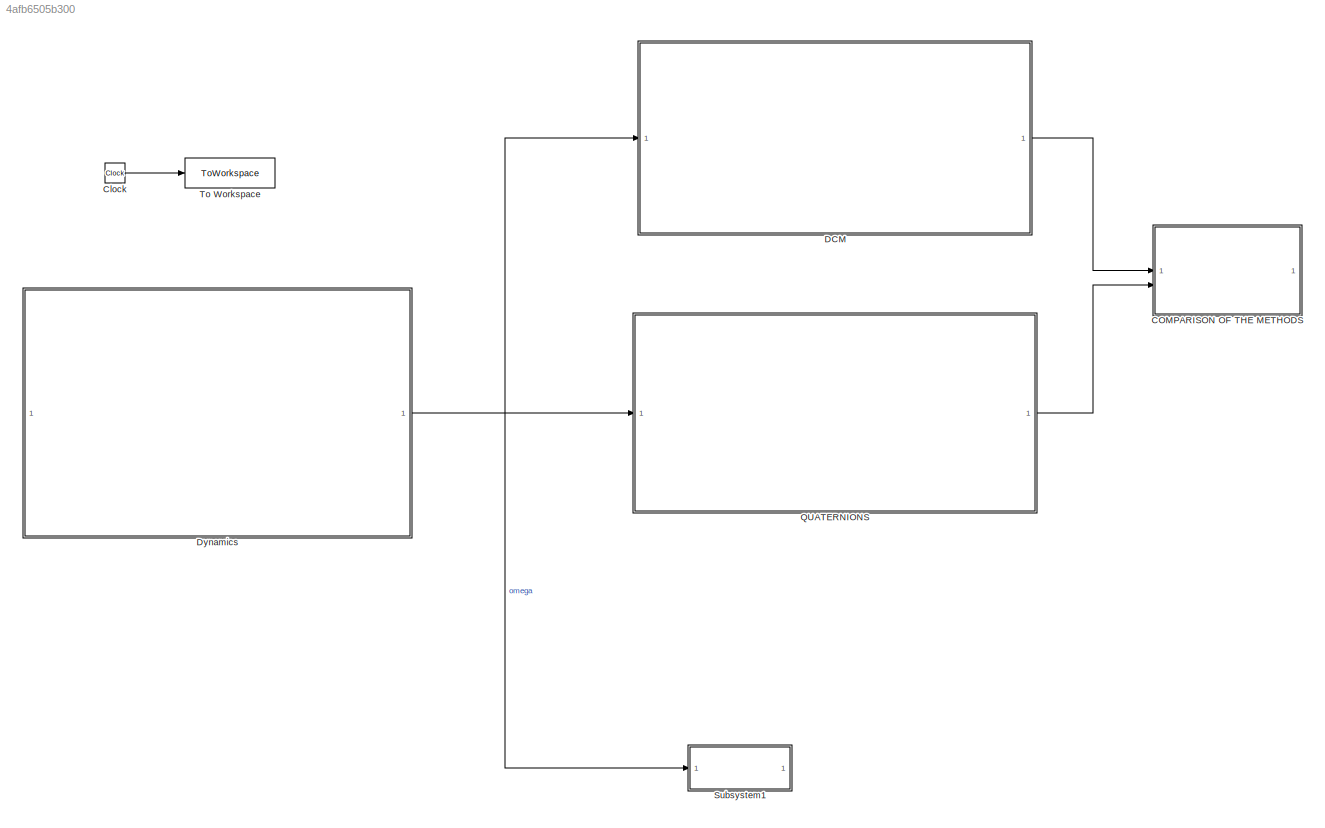
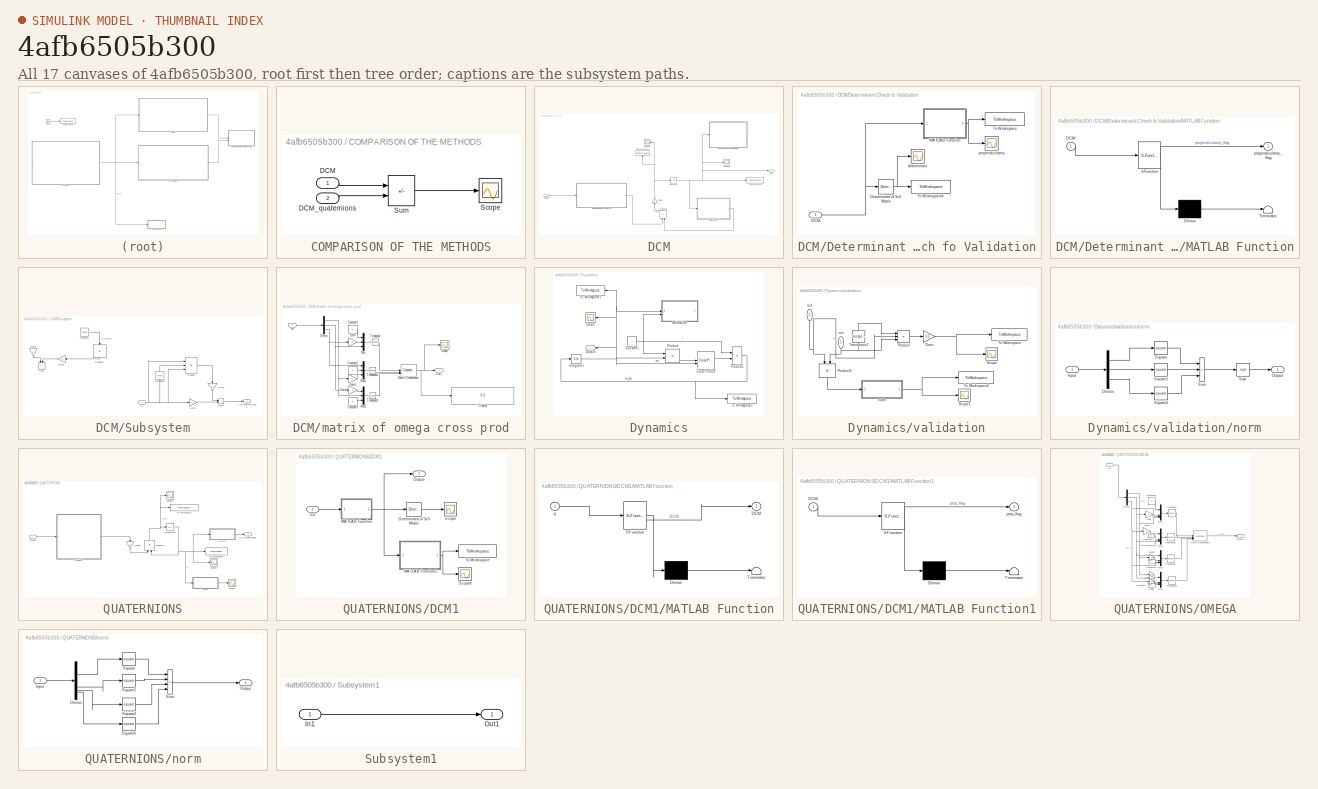
[diagram: thumbnail index - all 17 canvases of the model, root first then tree order]
MODEL slx_4afb6505b300
KIND model
CONFIG AbsTol = auto
CONFIG EnableMultiTasking = off
CONFIG FixedStep = 0.1
CONFIG MaxStep = auto
CONFIG MinStep = auto
CONFIG RelTol = 1e-3
CONFIG SampleTimeConstraint = Unconstrained
CONFIG SolverName = ode4
CONFIG StartTime = 0.0
CONFIG StopTime = 100
BLOCK [SubSystem] COMPARISON OF THE METHODS
BLOCK [Inport] COMPARISON OF THE METHODS/DCM
BLOCK [Inport] COMPARISON OF THE METHODS/DCM_quaternions
  Port = 2
BLOCK [Scope] COMPARISON OF THE METHODS/Scope
  Floating = off
  NumInputPorts = 1
  ScopeSpecificationString = Simulink.scopes.TimeScopeBlockCfg('CurrentConfiguration', extmgr.ConfigurationSet(extmgr.Configuration('Core','General UI',true),extmgr.Configuration('Core','Source UI',true),extmgr.Configuration('Sources','WiredSimulink',true,'DataLoggingVariableName','ScopeData7'),extmgr.Configuration('Visuals','Time Domain',true,'SerializedDisplays',{struct('MinYLimReal','-0.00003','MaxYLimReal','0.00003','YLab...<+1470ch>
BLOCK [Sum] COMPARISON OF THE METHODS/Sum
  IconShape = rectangular
  Inputs = +-
BLOCK [Clock] Clock
BLOCK [SubSystem] DCM
BLOCK [Outport] DCM/DCM
BLOCK [SubSystem] DCM/Determinant Chech fo Validation
BLOCK [Inport] DCM/Determinant Chech fo Validation/DCM
BLOCK [Reference] DCM/Determinant Chech fo Validation/Determinant of 3x3 Matrix  REF=sharedutil/Determinant of
3x3 Matrix
  LibrarySourceBlock = aerolibutil/Determinant of\n3x3 Matrix
  SourceBlock = sharedutil/Determinant of\n3x3 Matrix
  SourceType = Determinant of 3x3 Matrix
BLOCK [SubSystem] DCM/Determinant Chech fo Validation/MATLAB Function
  ErrorFcn = Stateflow.Translate.translate
  LibrarySourceBlock = simulink/User-Defined\nFunctions/MATLAB Function
  PermitHierarchicalResolution = ExplicitOnly
  SFBlockType = MATLAB Function
  TreatAsAtomicUnit = on
BLOCK [Demux] DCM/Determinant Chech fo Validation/MATLAB Function/ Demux 
  Outputs = 1
BLOCK [S-Function] DCM/Determinant Chech fo Validation/MATLAB Function/ SFunction 
  EnableBusSupport = on
  FunctionName = sf_sfun
  PortCounts = [1 2]
  SFcnIsStateOwnerBlock = off
  SFunctionDeploymentMode = off
  Tag = Stateflow S-Function 2
BLOCK [Terminator] DCM/Determinant Chech fo Validation/MATLAB Function/ Terminator 
BLOCK [Inport] DCM/Determinant Chech fo Validation/MATLAB Function/DCM
BLOCK [Outport] DCM/Determinant Chech fo Validation/MATLAB Function/perpendicularity_flag
BLOCK [ToWorkspace] DCM/Determinant Chech fo Validation/To Workspace
  FixptAsFi = on
  MaxDataPoints = inf
  SampleTime = -1
  VariableName = perpendicularity_flag
BLOCK [ToWorkspace] DCM/Determinant Chech fo Validation/To Workspace4
  FixptAsFi = on
  MaxDataPoints = inf
  SampleTime = -1
  VariableName = detA
BLOCK [Scope] DCM/Determinant Chech fo Validation/determinant
  Floating = off
  NumInputPorts = 1
  ScopeSpecificationString = Simulink.scopes.TimeScopeBlockCfg('CurrentConfiguration', extmgr.ConfigurationSet(extmgr.Configuration('Core','General UI',true),extmgr.Configuration('Core','Source UI',true),extmgr.Configuration('Sources','WiredSimulink',true,'DataLoggingVariableName','ScopeData1'),extmgr.Configuration('Visuals','Time Domain',true,'SerializedDisplays',{struct('MinYLimReal','0.9999958','MaxYLimReal','1.0000005','Y...<+1437ch>
BLOCK [Scope] DCM/Determinant Chech fo Validation/perpendicularity
  Floating = off
  NumInputPorts = 1
  ScopeSpecificationString = Simulink.scopes.TimeScopeBlockCfg('CurrentConfiguration', extmgr.ConfigurationSet(extmgr.Configuration('Core','General UI',true),extmgr.Configuration('Core','Source UI',true),extmgr.Configuration('Sources','WiredSimulink',true,'DataLoggingVariableName','ScopeData2'),extmgr.Configuration('Visuals','Time Domain',true,'SerializedDisplays',{struct('MinYLimReal','-0.0000017','MaxYLimReal','0.0000018','...<+1430ch>
BLOCK [Gain] DCM/Gain1
  Gain = -1
  NameLocation = right
BLOCK [Integrator] DCM/Integrator1
  InitialCondition = A0
BLOCK [Product] DCM/Product2
  Multiplication = Matrix(*)
  NameLocation = right
BLOCK [Scope] DCM/Scope1
  Floating = off
  NameLocation = top
  NumInputPorts = 1
  ScopeSpecificationString = Simulink.scopes.TimeScopeBlockCfg('CurrentConfiguration', extmgr.ConfigurationSet(extmgr.Configuration('Core','General UI',true),extmgr.Configuration('Core','Source UI',true),extmgr.Configuration('Sources','WiredSimulink',true,'DataLoggingVariableName','ScopeData3'),extmgr.Configuration('Visuals','Time Domain',true,'SerializedDisplays',{struct('MinYLimReal','-1.12078','MaxYLimReal','1.12831','YLab...<+1504ch>
BLOCK [Scope] DCM/Scope2
  Floating = off
  NumInputPorts = 1
  ScopeSpecificationString = Simulink.scopes.TimeScopeBlockCfg('CurrentConfiguration', extmgr.ConfigurationSet(extmgr.Configuration('Core','General UI',true),extmgr.Configuration('Core','Source UI',true),extmgr.Configuration('Sources','WiredSimulink',true,'DataLoggingVariableName','ScopeData4'),extmgr.Configuration('Visuals','Time Domain',true,'SerializedDisplays',{struct('MinYLimReal','-1.24998','MaxYLimReal','1.25','YLabelR...<+1527ch>
BLOCK [SubSystem] DCM/Subsystem
BLOCK [Inport] DCM/Subsystem/A1
BLOCK [Outport] DCM/Subsystem/A_orthonormalized1
BLOCK [Gain] DCM/Subsystem/Gain
  Gain = 1.5
BLOCK [Gain] DCM/Subsystem/Gain1
  Gain = -0.5
  NameLocation = left
BLOCK [Gain] DCM/Subsystem/Gain4
  Commented = on
  Gain = 3/2
  NameLocation = left
BLOCK [Gain] DCM/Subsystem/Gain5
  Commented = on
  Gain = 1/2
  NameLocation = top
BLOCK [Product] DCM/Subsystem/Product
  Inputs = 3
  Multiplication = Matrix(*)
BLOCK [Product] DCM/Subsystem/Product3
  Commented = on
  Inputs = 3
  Multiplication = Matrix(*)
  NameLocation = left
BLOCK [Sum] DCM/Subsystem/Sum
  Commented = on
  IconShape = rectangular
  Inputs = +-
  NameLocation = left
BLOCK [Sum] DCM/Subsystem/Sum1
  IconShape = rectangular
BLOCK [Math] DCM/Subsystem/Transpose
  Commented = on
  Operator = transpose
BLOCK [Math] DCM/Subsystem/Transpose1
  NameLocation = right
  Operator = transpose
BLOCK [ToWorkspace] DCM/To Workspace2
  FixptAsFi = on
  MaxDataPoints = inf
  SampleTime = -1
  VariableName = A
BLOCK [ToWorkspace] DCM/To Workspace3
  FixptAsFi = on
  MaxDataPoints = inf
  NameLocation = right
  SampleTime = -1
  VariableName = A_dot
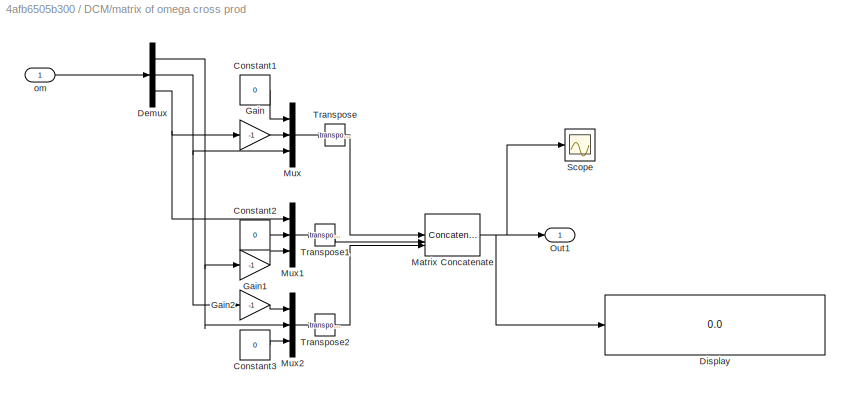
BLOCK [SubSystem] DCM/matrix of omega cross prod
BLOCK [Constant] DCM/matrix of omega cross prod/Constant1
  Value = 0
BLOCK [Constant] DCM/matrix of omega cross prod/Constant2
  Value = 0
BLOCK [Constant] DCM/matrix of omega cross prod/Constant3
  Value = 0
BLOCK [Demux] DCM/matrix of omega cross prod/Demux
  Outputs = 3
BLOCK [Display] DCM/matrix of omega cross prod/Display
  Decimation = 1
BLOCK [Gain] DCM/matrix of omega cross prod/Gain
  Gain = -1
BLOCK [Gain] DCM/matrix of omega cross prod/Gain1
  Gain = -1
BLOCK [Gain] DCM/matrix of omega cross prod/Gain2
  Gain = -1
BLOCK [Concatenate] DCM/matrix of omega cross prod/Matrix Concatenate
  Mode = Multidimensional array
  NumInputs = 3
BLOCK [Mux] DCM/matrix of omega cross prod/Mux
  DisplayOption = bar
  Inputs = 3
BLOCK [Mux] DCM/matrix of omega cross prod/Mux1
  DisplayOption = bar
  Inputs = 3
BLOCK [Mux] DCM/matrix of omega cross prod/Mux2
  DisplayOption = bar
  Inputs = 3
BLOCK [Outport] DCM/matrix of omega cross prod/Out1
BLOCK [Scope] DCM/matrix of omega cross prod/Scope
  Floating = off
  NumInputPorts = 1
  ScopeSpecificationString = Simulink.scopes.TimeScopeBlockCfg('CurrentConfiguration', extmgr.ConfigurationSet(extmgr.Configuration('Core','General UI',true),extmgr.Configuration('Core','Source UI',true),extmgr.Configuration('Sources','WiredSimulink',true,'DataLoggingVariableName','ScopeData2'),extmgr.Configuration('Visuals','Time Domain',true,'SerializedDisplays',{struct('MinYLimReal','-1.01319','MaxYLimReal','1.01319','YLab...<+1486ch>
BLOCK [Math] DCM/matrix of omega cross prod/Transpose
  Operator = transpose
BLOCK [Math] DCM/matrix of omega cross prod/Transpose1
  Operator = transpose
BLOCK [Math] DCM/matrix of omega cross prod/Transpose2
  Operator = transpose
BLOCK [Inport] DCM/matrix of omega cross prod/om
BLOCK [Inport] DCM/omega
BLOCK [SubSystem] Dynamics
BLOCK [Constant] Dynamics/Constant
  Value = I
BLOCK [Reference] Dynamics/Cross Product  REF=matrix_library/Cross Product
  LibrarySourceBlock = simulink/Matrix\nOperations/Cross Product
  SourceBlock = matrix_library/Cross Product
  SourceType = CrossProduct
BLOCK [Integrator] Dynamics/Integrator
  InitialCondition = om_0
BLOCK [Outport] Dynamics/Output
  NameLocation = top
BLOCK [Product] Dynamics/Product
  Multiplication = Matrix(*)
BLOCK [Product] Dynamics/Product1
  Inputs = /*
  Multiplication = Matrix(*)
BLOCK [Scope] Dynamics/Scope
  Floating = off
  NameLocation = top
  NumInputPorts = 1
  ScopeSpecificationString = Simulink.scopes.TimeScopeBlockCfg('CurrentConfiguration', extmgr.ConfigurationSet(extmgr.Configuration('Core','General UI',true),extmgr.Configuration('Core','Source UI',true),extmgr.Configuration('Sources','WiredSimulink',true,'DataLoggingVariableName','ScopeData1'),extmgr.Configuration('Visuals','Time Domain',true,'SerializedDisplays',{struct('MinYLimReal','-1.01319','MaxYLimReal','1.01319','YLab...<+1377ch>
BLOCK [ToWorkspace] Dynamics/To Workspace1
  FixptAsFi = on
  MaxDataPoints = inf
  NameLocation = top
  SampleTime = -1
  VariableName = omega
BLOCK [ToWorkspace] Dynamics/To Workspace2
  FixptAsFi = on
  MaxDataPoints = inf
  SampleTime = -1
  VariableName = omega_dot
BLOCK [SubSystem] Dynamics/validation
BLOCK [Gain] Dynamics/validation/Gain
  Gain = 1/2
BLOCK [Inport] Dynamics/validation/In2
  NameLocation = left
  Port = 2
BLOCK [Product] Dynamics/validation/Product
  Inputs = 3
  Multiplication = Matrix(*)
BLOCK [Product] Dynamics/validation/Product2
  Multiplication = Matrix(*)
  NameLocation = left
BLOCK [Scope] Dynamics/validation/Scope
  Floating = off
  NumInputPorts = 1
  ScopeSpecificationString = Simulink.scopes.TimeScopeBlockCfg('CurrentConfiguration', extmgr.ConfigurationSet(extmgr.Configuration('Core','General UI',true),extmgr.Configuration('Core','Source UI',true),extmgr.Configuration('Sources','WiredSimulink',true,'DataLoggingVariableName','ScopeData2'),extmgr.Configuration('Visuals','Time Domain',true,'SerializedDisplays',{struct('MinYLimReal','0.01830474937','MaxYLimReal','0.0183047...<+1409ch>
BLOCK [Scope] Dynamics/validation/Scope1
  Floating = off
  NumInputPorts = 1
  ScopeSpecificationString = Simulink.scopes.TimeScopeBlockCfg('CurrentConfiguration', extmgr.ConfigurationSet(extmgr.Configuration('Core','General UI',true),extmgr.Configuration('Core','Source UI',true),extmgr.Configuration('Sources','WiredSimulink',true,'DataLoggingVariableName','ScopeData1'),extmgr.Configuration('Visuals','Time Domain',true,'SerializedDisplays',{struct('MinYLimReal','0.0447132243','MaxYLimReal','0.04471322...<+1406ch>
BLOCK [ToWorkspace] Dynamics/validation/To Workspace
  FixptAsFi = on
  MaxDataPoints = inf
  SampleTime = -1
  VariableName = E
BLOCK [ToWorkspace] Dynamics/validation/To Workspace2
  FixptAsFi = on
  MaxDataPoints = inf
  SampleTime = -1
  VariableName = hnorm
BLOCK [Math] Dynamics/validation/Transpose1
  NameLocation = right
  Operator = transpose
BLOCK [SubSystem] Dynamics/validation/norm
BLOCK [Demux] Dynamics/validation/norm/Demux
  Outputs = 3
BLOCK [Inport] Dynamics/validation/norm/Input
BLOCK [Outport] Dynamics/validation/norm/Output
BLOCK [Sqrt] Dynamics/validation/norm/Sqrt
BLOCK [Math] Dynamics/validation/norm/Square
  Operator = square
BLOCK [Math] Dynamics/validation/norm/Square1
  Operator = square
BLOCK [Math] Dynamics/validation/norm/Square2
  Operator = square
BLOCK [Sum] Dynamics/validation/norm/Sum
  IconShape = rectangular
  Inputs = +++
BLOCK [Inport] Dynamics/validation/om
  NameLocation = left
BLOCK [SubSystem] QUATERNIONS
BLOCK [SubSystem] QUATERNIONS/DCM1
BLOCK [Reference] QUATERNIONS/DCM1/Determinant of 3x3 Matrix  REF=sharedutil/Determinant of
3x3 Matrix
  LibrarySourceBlock = aerolibutil/Determinant of\n3x3 Matrix
  SourceBlock = sharedutil/Determinant of\n3x3 Matrix
  SourceType = Determinant of 3x3 Matrix
BLOCK [Inport] QUATERNIONS/DCM1/In1
BLOCK [SubSystem] QUATERNIONS/DCM1/MATLAB Function
  ErrorFcn = Stateflow.Translate.translate
  LibrarySourceBlock = simulink/User-Defined\nFunctions/MATLAB Function
  PermitHierarchicalResolution = ExplicitOnly
  SFBlockType = MATLAB Function
  TreatAsAtomicUnit = on
BLOCK [Demux] QUATERNIONS/DCM1/MATLAB Function/ Demux 
  Outputs = 1
BLOCK [S-Function] QUATERNIONS/DCM1/MATLAB Function/ SFunction 
  EnableBusSupport = on
  FunctionName = sf_sfun
  PortCounts = [1 2]
  SFcnIsStateOwnerBlock = off
  SFunctionDeploymentMode = off
  Tag = Stateflow S-Function 1
BLOCK [Terminator] QUATERNIONS/DCM1/MATLAB Function/ Terminator 
BLOCK [Outport] QUATERNIONS/DCM1/MATLAB Function/DCM
BLOCK [Inport] QUATERNIONS/DCM1/MATLAB Function/q
BLOCK [SubSystem] QUATERNIONS/DCM1/MATLAB Function1
  ErrorFcn = Stateflow.Translate.translate
  LibrarySourceBlock = simulink/User-Defined\nFunctions/MATLAB Function
  PermitHierarchicalResolution = ExplicitOnly
  SFBlockType = MATLAB Function
  TreatAsAtomicUnit = on
BLOCK [Demux] QUATERNIONS/DCM1/MATLAB Function1/ Demux 
  Outputs = 1
BLOCK [S-Function] QUATERNIONS/DCM1/MATLAB Function1/ SFunction 
  EnableBusSupport = on
  FunctionName = sf_sfun
  PortCounts = [1 2]
  SFcnIsStateOwnerBlock = off
  SFunctionDeploymentMode = off
  Tag = Stateflow S-Function 3
BLOCK [Terminator] QUATERNIONS/DCM1/MATLAB Function1/ Terminator 
BLOCK [Inport] QUATERNIONS/DCM1/MATLAB Function1/DCM
BLOCK [Outport] QUATERNIONS/DCM1/MATLAB Function1/perp_flag
BLOCK [Outport] QUATERNIONS/DCM1/Output
BLOCK [Scope] QUATERNIONS/DCM1/Scope
  Floating = off
  NumInputPorts = 1
  ScopeSpecificationString = Simulink.scopes.TimeScopeBlockCfg('CurrentConfiguration', extmgr.ConfigurationSet(extmgr.Configuration('Core','General UI',true),extmgr.Configuration('Core','Source UI',true),extmgr.Configuration('Sources','WiredSimulink',true,'DataLoggingVariableName','ScopeData1'),extmgr.Configuration('Visuals','Time Domain',true,'SerializedDisplays',{struct('MinYLimReal','0.99999957','MaxYLimReal','1.00000013',...<+1406ch>
BLOCK [Scope] QUATERNIONS/DCM1/Scope4
  Floating = off
  NumInputPorts = 1
  ScopeSpecificationString = Simulink.scopes.TimeScopeBlockCfg('CurrentConfiguration', extmgr.ConfigurationSet(extmgr.Configuration('Core','General UI',true),extmgr.Configuration('Core','Source UI',true),extmgr.Configuration('Sources','WiredSimulink',true,'DataLoggingVariableName','ScopeData8'),extmgr.Configuration('Visuals','Time Domain',true,'SerializedDisplays',{struct('MinYLimReal','-0.00000000000000031','MaxYLimReal','0....<+1568ch>
BLOCK [ToWorkspace] QUATERNIONS/DCM1/To Workspace
  FixptAsFi = on
  MaxDataPoints = inf
  SampleTime = -1
  VariableName = perp_flag1
BLOCK [Outport] QUATERNIONS/DCM_quaternions
BLOCK [Gain] QUATERNIONS/Gain3
  Gain = 1/2
  NameLocation = left
BLOCK [Integrator] QUATERNIONS/Integrator1
  InitialCondition = q0
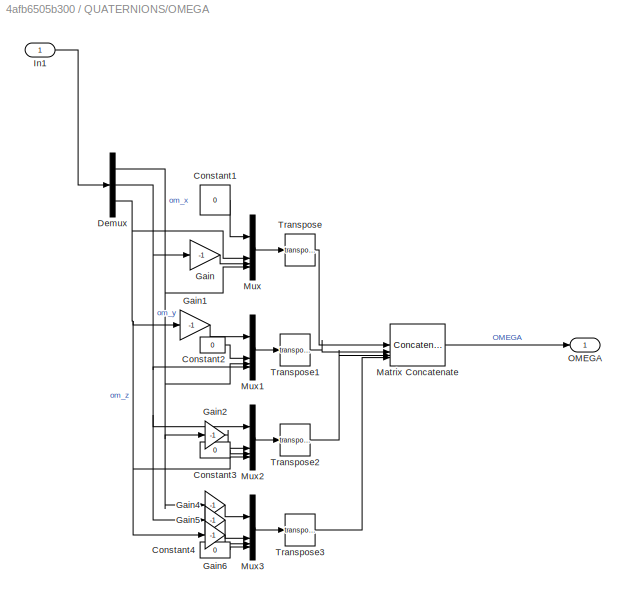
BLOCK [SubSystem] QUATERNIONS/OMEGA
BLOCK [Constant] QUATERNIONS/OMEGA/Constant1
  Value = 0
BLOCK [Constant] QUATERNIONS/OMEGA/Constant2
  Value = 0
BLOCK [Constant] QUATERNIONS/OMEGA/Constant3
  Value = 0
BLOCK [Constant] QUATERNIONS/OMEGA/Constant4
  Value = 0
BLOCK [Demux] QUATERNIONS/OMEGA/Demux
  Outputs = 3
BLOCK [Gain] QUATERNIONS/OMEGA/Gain
  Gain = -1
BLOCK [Gain] QUATERNIONS/OMEGA/Gain1
  Gain = -1
BLOCK [Gain] QUATERNIONS/OMEGA/Gain2
  Gain = -1
BLOCK [Gain] QUATERNIONS/OMEGA/Gain4
  Gain = -1
BLOCK [Gain] QUATERNIONS/OMEGA/Gain5
  Gain = -1
BLOCK [Gain] QUATERNIONS/OMEGA/Gain6
  Gain = -1
BLOCK [Inport] QUATERNIONS/OMEGA/In1
BLOCK [Concatenate] QUATERNIONS/OMEGA/Matrix Concatenate
  Mode = Multidimensional array
  NumInputs = 4
BLOCK [Mux] QUATERNIONS/OMEGA/Mux
  DisplayOption = bar
BLOCK [Mux] QUATERNIONS/OMEGA/Mux1
  DisplayOption = bar
BLOCK [Mux] QUATERNIONS/OMEGA/Mux2
  DisplayOption = bar
BLOCK [Mux] QUATERNIONS/OMEGA/Mux3
  DisplayOption = bar
BLOCK [Outport] QUATERNIONS/OMEGA/OMEGA
BLOCK [Math] QUATERNIONS/OMEGA/Transpose
  Operator = transpose
BLOCK [Math] QUATERNIONS/OMEGA/Transpose1
  Operator = transpose
BLOCK [Math] QUATERNIONS/OMEGA/Transpose2
  Operator = transpose
BLOCK [Math] QUATERNIONS/OMEGA/Transpose3
  Operator = transpose
BLOCK [Product] QUATERNIONS/Product2
  Multiplication = Matrix(*)
  NameLocation = right
BLOCK [Scope] QUATERNIONS/Scope
  Floating = off
  NumInputPorts = 1
  ScopeSpecificationString = Simulink.scopes.TimeScopeBlockCfg('CurrentConfiguration', extmgr.ConfigurationSet(extmgr.Configuration('Core','General UI',true),extmgr.Configuration('Core','Source UI',true),extmgr.Configuration('Sources','WiredSimulink',true,'DataLoggingVariableName','ScopeData1'),extmgr.Configuration('Visuals','Time Domain',true,'SerializedDisplays',{struct('MinYLimReal','0.99999986','MaxYLimReal','1.00000004',...<+1385ch>
BLOCK [Scope] QUATERNIONS/Scope1
  Floating = off
  NumInputPorts = 1
  ScopeSpecificationString = Simulink.scopes.TimeScopeBlockCfg('CurrentConfiguration', extmgr.ConfigurationSet(extmgr.Configuration('Core','General UI',true),extmgr.Configuration('Core','Source UI',true),extmgr.Configuration('Sources','WiredSimulink',true,'DataLoggingVariableName','ScopeData5'),extmgr.Configuration('Visuals','Time Domain',true,'SerializedDisplays',{struct('MinYLimReal','-1.24956','MaxYLimReal','1.24995','YLab...<+1420ch>
BLOCK [Scope] QUATERNIONS/Scope2
  Floating = off
  NumInputPorts = 1
  ScopeSpecificationString = Simulink.scopes.TimeScopeBlockCfg('CurrentConfiguration', extmgr.ConfigurationSet(extmgr.Configuration('Core','General UI',true),extmgr.Configuration('Core','Source UI',true),extmgr.Configuration('Sources','WiredSimulink',true,'DataLoggingVariableName','ScopeData6'),extmgr.Configuration('Visuals','Time Domain',true,'SerializedDisplays',{struct('MinYLimReal','-0.50726','MaxYLimReal','0.50895','YLab...<+1396ch>
BLOCK [ToWorkspace] QUATERNIONS/To Workspace2
  FixptAsFi = on
  MaxDataPoints = inf
  SampleTime = -1
  SaveFormat = Timeseries
  VariableName = q
BLOCK [ToWorkspace] QUATERNIONS/To Workspace3
  FixptAsFi = on
  MaxDataPoints = inf
  SampleTime = -1
  SaveFormat = Timeseries
  VariableName = q_dot
BLOCK [SubSystem] QUATERNIONS/norm
BLOCK [Demux] QUATERNIONS/norm/Demux
BLOCK [Inport] QUATERNIONS/norm/Input
BLOCK [Outport] QUATERNIONS/norm/Output
BLOCK [Math] QUATERNIONS/norm/Square
  Operator = square
BLOCK [Math] QUATERNIONS/norm/Square1
  Operator = square
BLOCK [Math] QUATERNIONS/norm/Square2
  Operator = square
BLOCK [Math] QUATERNIONS/norm/Square4
  Operator = square
BLOCK [Sum] QUATERNIONS/norm/Sum
  IconShape = rectangular
  Inputs = ++++
BLOCK [Inport] QUATERNIONS/omega
BLOCK [SubSystem] Subsystem1
  Commented = on
BLOCK [Inport] Subsystem1/In1
BLOCK [Outport] Subsystem1/Out1
BLOCK [ToWorkspace] To Workspace
  FixptAsFi = on
  MaxDataPoints = inf
  SampleTime = -1
  SaveFormat = Timeseries
  VariableName = time
ANNOTATION DCM: A
LINE COMPARISON OF THE METHODS/DCM:1 -> COMPARISON OF THE METHODS/Sum:1
LINE COMPARISON OF THE METHODS/DCM_quaternions:1 -> COMPARISON OF THE METHODS/Sum:2
LINE COMPARISON OF THE METHODS/Sum:1 -> COMPARISON OF THE METHODS/Scope:1
LINE Clock:1 -> To Workspace:1
NET DCM/Determinant Chech fo Validation/DCM:1 -> DCM/Determinant Chech fo Validation/Determinant of 3x3 Matrix:1, DCM/Determinant Chech fo Validation/MATLAB Function:1
NET DCM/Determinant Chech fo Validation/Determinant of 3x3 Matrix:1 -> DCM/Determinant Chech fo Validation/To Workspace4:1, DCM/Determinant Chech fo Validation/determinant:1
NET DCM/Determinant Chech fo Validation/MATLAB Function:1 -> DCM/Determinant Chech fo Validation/To Workspace:1, DCM/Determinant Chech fo Validation/perpendicularity:1
NET DCM/Gain1:1 -> DCM/Integrator1:1, DCM/Scope1:1, DCM/To Workspace3:1
NET DCM/Integrator1:1 -> DCM/DCM:1, DCM/Determinant Chech fo Validation:1, DCM/Scope2:1, DCM/Subsystem:1, DCM/To Workspace2:1
LINE DCM/Product2:1 -> DCM/Gain1:1
NET DCM/Subsystem/A1:1 -> DCM/Subsystem/Gain:1, DCM/Subsystem/Product:1, DCM/Subsystem/Product:3, DCM/Subsystem/Transpose1:1
LINE DCM/Subsystem/Gain1:1 -> DCM/Subsystem/Sum1:1
LINE DCM/Subsystem/Gain4:1 -> DCM/Subsystem/Sum:1
LINE DCM/Subsystem/Gain5:1 -> DCM/Subsystem/Sum:2
LINE DCM/Subsystem/Gain:1 -> DCM/Subsystem/Sum1:2
LINE DCM/Subsystem/Product3:1 -> DCM/Subsystem/Gain5:1
LINE DCM/Subsystem/Product:1 -> DCM/Subsystem/Gain1:1
LINE DCM/Subsystem/Sum1:1 -> DCM/Subsystem/A_orthonormalized1:1
LINE DCM/Subsystem/Transpose1:1 -> DCM/Subsystem/Product:2
LINE DCM/Subsystem/Transpose:1 -> DCM/Subsystem/Product3:2
LINE DCM/Subsystem:1 -> DCM/Product2:2
LINE DCM/matrix of omega cross prod/Constant1:1 -> DCM/matrix of omega cross prod/Mux:1
LINE DCM/matrix of omega cross prod/Constant2:1 -> DCM/matrix of omega cross prod/Mux1:2
LINE DCM/matrix of omega cross prod/Constant3:1 -> DCM/matrix of omega cross prod/Mux2:3
NET DCM/matrix of omega cross prod/Demux:1 -> DCM/matrix of omega cross prod/Gain1:1, DCM/matrix of omega cross prod/Mux2:2
NET DCM/matrix of omega cross prod/Demux:2 -> DCM/matrix of omega cross prod/Gain2:1, DCM/matrix of omega cross prod/Mux:3
NET DCM/matrix of omega cross prod/Demux:3 -> DCM/matrix of omega cross prod/Gain:1, DCM/matrix of omega cross prod/Mux1:1
LINE DCM/matrix of omega cross prod/Gain1:1 -> DCM/matrix of omega cross prod/Mux1:3
LINE DCM/matrix of omega cross prod/Gain2:1 -> DCM/matrix of omega cross prod/Mux2:1
LINE DCM/matrix of omega cross prod/Gain:1 -> DCM/matrix of omega cross prod/Mux:2
NET DCM/matrix of omega cross prod/Matrix Concatenate:1 -> DCM/matrix of omega cross prod/Display:1, DCM/matrix of omega cross prod/Out1:1, DCM/matrix of omega cross prod/Scope:1
LINE DCM/matrix of omega cross prod/Mux1:1 -> DCM/matrix of omega cross prod/Transpose1:1
LINE DCM/matrix of omega cross prod/Mux2:1 -> DCM/matrix of omega cross prod/Transpose2:1
LINE DCM/matrix of omega cross prod/Mux:1 -> DCM/matrix of omega cross prod/Transpose:1
LINE DCM/matrix of omega cross prod/Transpose1:1 -> DCM/matrix of omega cross prod/Matrix Concatenate:2
LINE DCM/matrix of omega cross prod/Transpose2:1 -> DCM/matrix of omega cross prod/Matrix Concatenate:3
LINE DCM/matrix of omega cross prod/Transpose:1 -> DCM/matrix of omega cross prod/Matrix Concatenate:1
LINE DCM/matrix of omega cross prod/om:1 -> DCM/matrix of omega cross prod/Demux:1
LINE DCM/matrix of omega cross prod:1 -> DCM/Product2:1
LINE DCM/omega:1 -> DCM/matrix of omega cross prod:1
LINE DCM:1 -> COMPARISON OF THE METHODS:1
NET Dynamics/Constant:1 -> Dynamics/Product1:1, Dynamics/Product:1, Dynamics/validation:2
LINE Dynamics/Cross Product:1 -> Dynamics/Product1:2
NET Dynamics/Integrator:1 -> Dynamics/Cross Product:2, Dynamics/Output:1, Dynamics/Product:2, Dynamics/Scope:1, Dynamics/To Workspace1:1, Dynamics/validation:1
NET Dynamics/Product1:1 -> Dynamics/Integrator:1, Dynamics/To Workspace2:1
LINE Dynamics/Product:1 -> Dynamics/Cross Product:1
NET Dynamics/validation/Gain:1 -> Dynamics/validation/Scope:1, Dynamics/validation/To Workspace:1
NET Dynamics/validation/In2:1 -> Dynamics/validation/Product2:1, Dynamics/validation/Product:2
LINE Dynamics/validation/Product2:1 -> Dynamics/validation/norm:1
LINE Dynamics/validation/Product:1 -> Dynamics/validation/Gain:1
LINE Dynamics/validation/Transpose1:1 -> Dynamics/validation/Product:1
LINE Dynamics/validation/norm/Demux:1 -> Dynamics/validation/norm/Square:1
LINE Dynamics/validation/norm/Demux:2 -> Dynamics/validation/norm/Square1:1
LINE Dynamics/validation/norm/Demux:3 -> Dynamics/validation/norm/Square2:1
LINE Dynamics/validation/norm/Input:1 -> Dynamics/validation/norm/Demux:1
LINE Dynamics/validation/norm/Sqrt:1 -> Dynamics/validation/norm/Output:1
LINE Dynamics/validation/norm/Square1:1 -> Dynamics/validation/norm/Sum:2
LINE Dynamics/validation/norm/Square2:1 -> Dynamics/validation/norm/Sum:3
LINE Dynamics/validation/norm/Square:1 -> Dynamics/validation/norm/Sum:1
LINE Dynamics/validation/norm/Sum:1 -> Dynamics/validation/norm/Sqrt:1
NET Dynamics/validation/norm:1 -> Dynamics/validation/Scope1:1, Dynamics/validation/To Workspace2:1
NET Dynamics/validation/om:1 -> Dynamics/validation/Product2:2, Dynamics/validation/Product:3, Dynamics/validation/Transpose1:1
NET Dynamics:1 -> DCM:1, QUATERNIONS:1, Subsystem1:1
LINE QUATERNIONS/DCM1/Determinant of 3x3 Matrix:1 -> QUATERNIONS/DCM1/Scope:1
LINE QUATERNIONS/DCM1/In1:1 -> QUATERNIONS/DCM1/MATLAB Function:1
NET QUATERNIONS/DCM1/MATLAB Function1:1 -> QUATERNIONS/DCM1/Scope4:1, QUATERNIONS/DCM1/To Workspace:1
NET QUATERNIONS/DCM1/MATLAB Function:1 -> QUATERNIONS/DCM1/Determinant of 3x3 Matrix:1, QUATERNIONS/DCM1/MATLAB Function1:1, QUATERNIONS/DCM1/Output:1
LINE QUATERNIONS/DCM1:1 -> QUATERNIONS/DCM_quaternions:1
LINE QUATERNIONS/Gain3:1 -> QUATERNIONS/Product2:1
NET QUATERNIONS/Integrator1:1 -> QUATERNIONS/DCM1:1, QUATERNIONS/Product2:2, QUATERNIONS/Scope1:1, QUATERNIONS/To Workspace2:1, QUATERNIONS/norm:1
LINE QUATERNIONS/OMEGA/Constant1:1 -> QUATERNIONS/OMEGA/Mux:1
LINE QUATERNIONS/OMEGA/Constant2:1 -> QUATERNIONS/OMEGA/Mux1:2
LINE QUATERNIONS/OMEGA/Constant3:1 -> QUATERNIONS/OMEGA/Mux2:3
LINE QUATERNIONS/OMEGA/Constant4:1 -> QUATERNIONS/OMEGA/Mux3:4
NET QUATERNIONS/OMEGA/Demux:1 -> QUATERNIONS/OMEGA/Gain2:1, QUATERNIONS/OMEGA/Gain4:1, QUATERNIONS/OMEGA/Mux1:3, QUATERNIONS/OMEGA/Mux:4
NET QUATERNIONS/OMEGA/Demux:2 -> QUATERNIONS/OMEGA/Gain5:1, QUATERNIONS/OMEGA/Gain:1, QUATERNIONS/OMEGA/Mux1:4, QUATERNIONS/OMEGA/Mux2:1
NET QUATERNIONS/OMEGA/Demux:3 -> QUATERNIONS/OMEGA/Gain1:1, QUATERNIONS/OMEGA/Gain6:1, QUATERNIONS/OMEGA/Mux2:4, QUATERNIONS/OMEGA/Mux:2
LINE QUATERNIONS/OMEGA/Gain1:1 -> QUATERNIONS/OMEGA/Mux1:1
LINE QUATERNIONS/OMEGA/Gain2:1 -> QUATERNIONS/OMEGA/Mux2:2
LINE QUATERNIONS/OMEGA/Gain4:1 -> QUATERNIONS/OMEGA/Mux3:1
LINE QUATERNIONS/OMEGA/Gain5:1 -> QUATERNIONS/OMEGA/Mux3:2
LINE QUATERNIONS/OMEGA/Gain6:1 -> QUATERNIONS/OMEGA/Mux3:3
LINE QUATERNIONS/OMEGA/Gain:1 -> QUATERNIONS/OMEGA/Mux:3
LINE QUATERNIONS/OMEGA/In1:1 -> QUATERNIONS/OMEGA/Demux:1
LINE QUATERNIONS/OMEGA/Matrix Concatenate:1 -> QUATERNIONS/OMEGA/OMEGA:1
LINE QUATERNIONS/OMEGA/Mux1:1 -> QUATERNIONS/OMEGA/Transpose1:1
LINE QUATERNIONS/OMEGA/Mux2:1 -> QUATERNIONS/OMEGA/Transpose2:1
LINE QUATERNIONS/OMEGA/Mux3:1 -> QUATERNIONS/OMEGA/Transpose3:1
LINE QUATERNIONS/OMEGA/Mux:1 -> QUATERNIONS/OMEGA/Transpose:1
LINE QUATERNIONS/OMEGA/Transpose1:1 -> QUATERNIONS/OMEGA/Matrix Concatenate:2
LINE QUATERNIONS/OMEGA/Transpose2:1 -> QUATERNIONS/OMEGA/Matrix Concatenate:3
LINE QUATERNIONS/OMEGA/Transpose3:1 -> QUATERNIONS/OMEGA/Matrix Concatenate:4
LINE QUATERNIONS/OMEGA/Transpose:1 -> QUATERNIONS/OMEGA/Matrix Concatenate:1
LINE QUATERNIONS/OMEGA:1 -> QUATERNIONS/Gain3:1
NET QUATERNIONS/Product2:1 -> QUATERNIONS/Integrator1:1, QUATERNIONS/Scope2:1, QUATERNIONS/To Workspace3:1
LINE QUATERNIONS/norm/Demux:1 -> QUATERNIONS/norm/Square:1
LINE QUATERNIONS/norm/Demux:2 -> QUATERNIONS/norm/Square1:1
LINE QUATERNIONS/norm/Demux:3 -> QUATERNIONS/norm/Square2:1
LINE QUATERNIONS/norm/Demux:4 -> QUATERNIONS/norm/Square4:1
LINE QUATERNIONS/norm/Input:1 -> QUATERNIONS/norm/Demux:1
LINE QUATERNIONS/norm/Square1:1 -> QUATERNIONS/norm/Sum:2
LINE QUATERNIONS/norm/Square2:1 -> QUATERNIONS/norm/Sum:3
LINE QUATERNIONS/norm/Square4:1 -> QUATERNIONS/norm/Sum:4
LINE QUATERNIONS/norm/Square:1 -> QUATERNIONS/norm/Sum:1
LINE QUATERNIONS/norm/Sum:1 -> QUATERNIONS/norm/Output:1
LINE QUATERNIONS/norm:1 -> QUATERNIONS/Scope:1
LINE QUATERNIONS/omega:1 -> QUATERNIONS/OMEGA:1
LINE QUATERNIONS:1 -> COMPARISON OF THE METHODS:2
LINE Subsystem1/In1:1 -> Subsystem1/Out1:1
note: NET lines group one-source signal fan-out (src -> all destinations, sorted); 1:1 wires keep LINE
CHART DCM/Determinant Chech fo Validation/MATLAB Function states=1 transitions=1
  STATE_LABEL 'eML_blk_kernel()'
  STATE_LABEL 'SCRIPT:\nfunction perpendicularity_flag = fcn(DCM)\n\n\nperpendicularity_flag =zeros(3,1);\n\n    x   = DCM(1,:);\n    y   = DCM(2,:);\n    z   = DCM(3,:);\n\n    perpendicularity_flag(1)=dot(x,y);\n    perpendicularity_flag(2)=dot(x,z);\n    perpendicularity_flag(3)=dot(z,y);\n\nend\n\n'
CHART QUATERNIONS/DCM1/MATLAB Function1 states=1 transitions=1
  STATE_LABEL 'eML_blk_kernel()'
  STATE_LABEL 'SCRIPT:\nfunction perp_flag = fcn(DCM)\n\n\nperp_flag =zeros(3,1);\n\n    x   = DCM(1,:);\n    y   = DCM(2,:);\n    z   = DCM(3,:);\n\n    perp_flag(1)=dot(x,y);\n    perp_flag(2)=dot(x,z);\n    perp_flag(3)=dot(z,y);\n\nend\n\n'
CHART QUATERNIONS/DCM1/MATLAB Function states=1 transitions=1
  STATE_LABEL 'eML_blk_kernel()'
  STATE_LABEL 'SCRIPT:\nfunction DCM = fcn(q)\n\nq1 = q(1);\nq2 = q(2);\nq3 = q(3);\nq4 = q(4);\n\nDCM = [q1^2-q2^2-q3^2+q4^2, 2*(q1*q2+q3*q4), 2*(q1*q3-q2*q4);\n        2*(q1*q2-q3*q4), -q1^2+q2^2-q3^2+q4^2, 2*(q2*q3+q1*q4);\n        2*(q1*q3+q2*q4), 2*(q2*q3-q1*q4), -q1^2-q2^2+q3^2+q4^2];\n\nend\n\n'
CHART  states=0 transitions=0
CHART  states=0 transitions=0
CHART  states=0 transitions=0
